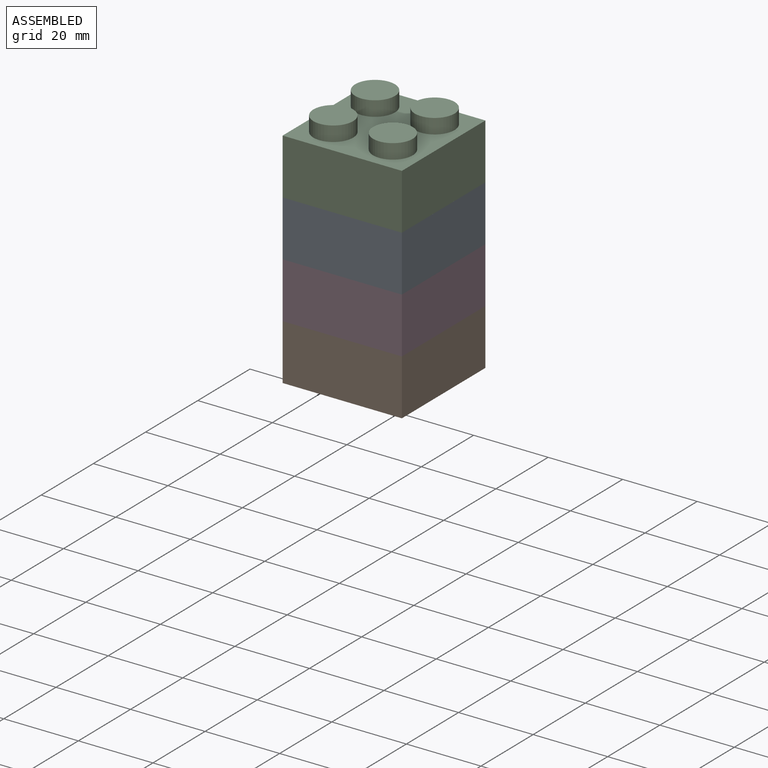
[diagram: assembled view]
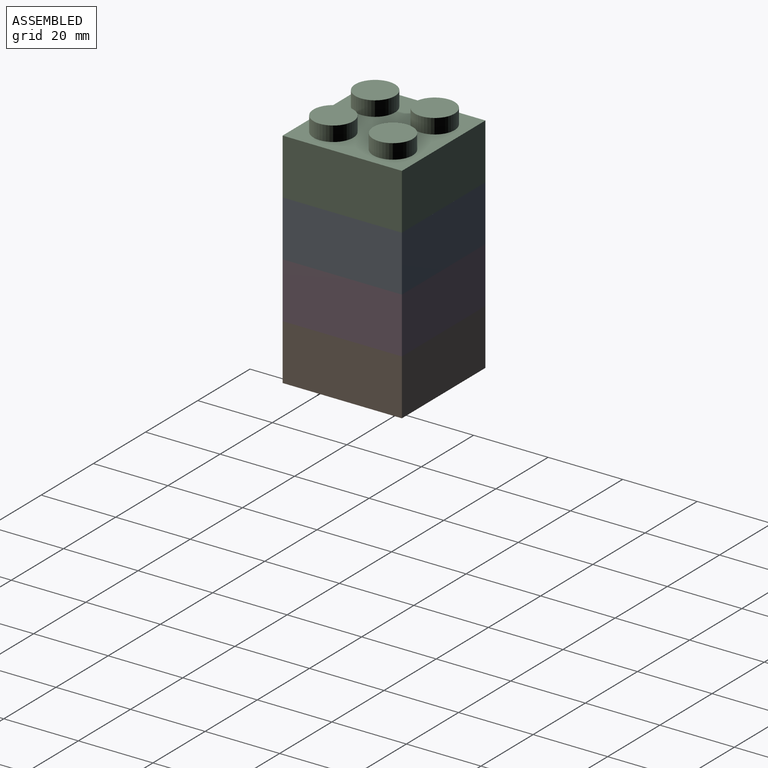
[diagram: assembled view, second angle]
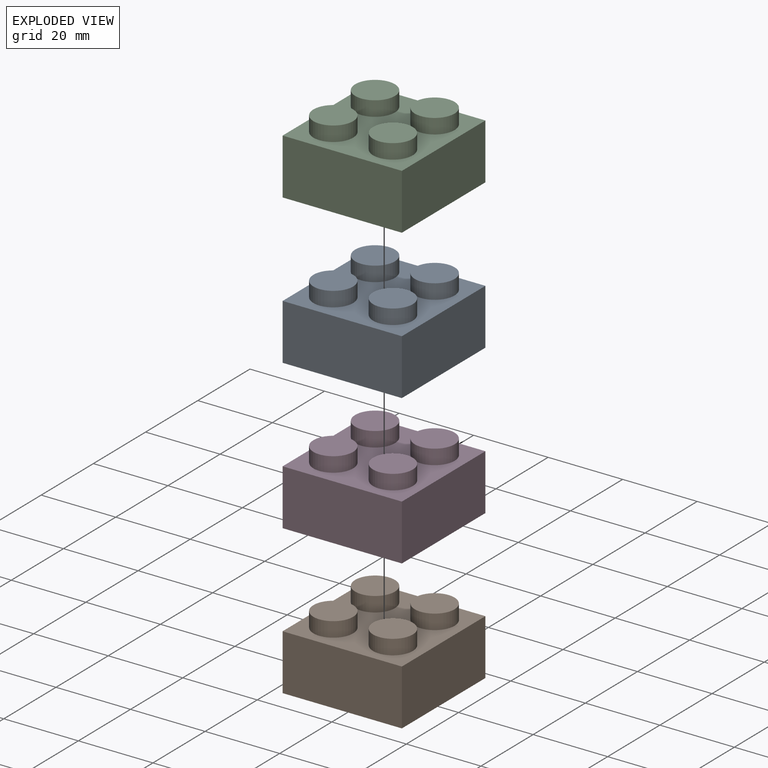
[diagram: exploded view]
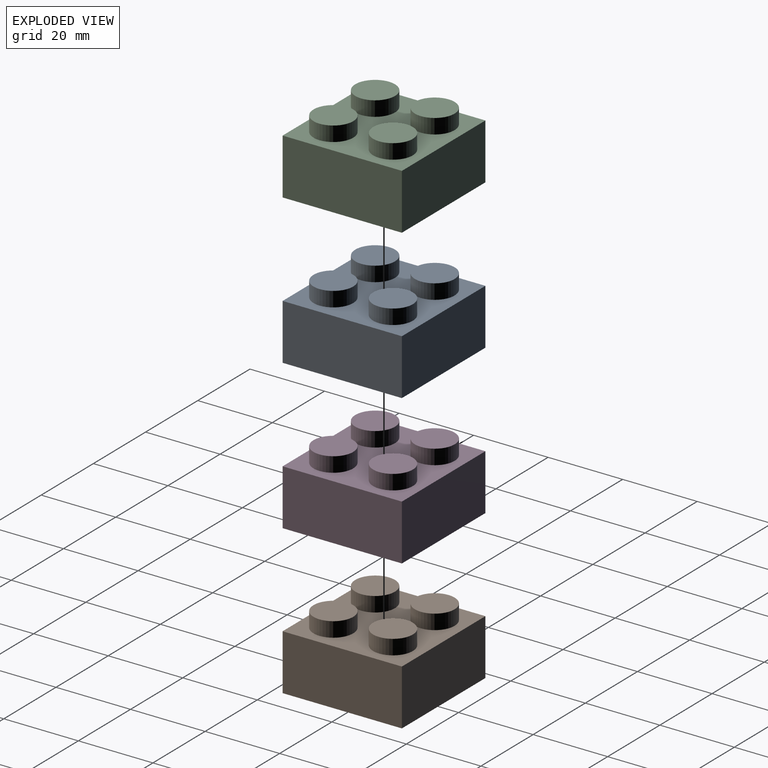
[diagram: exploded view, second angle]
ASSEMBLY  parts=4 mates=6
PART A: 27 faces, bbox 32x32x19 mm
  f0: plane 32x32mm, normal (0,0,-1), area 124mm2, adj f7,f8,f9,f10,f20,f21,f22,f23
  f1: cylinder r=5.33mm len=10.66mm, axis (0,0,-1), area 134mm2, adj f2,f11
  f2: plane 10.66x10.66mm, normal (0,0,1), area 89.2mm2, adj f1
  f3: cylinder r=5.33mm len=10.66mm, axis (0,0,-1), area 134mm2, adj f4,f11
  f4: plane 10.66x10.66mm, normal (0,0,1), area 89.2mm2, adj f3
  f5: cylinder r=5.33mm len=10.66mm, axis (0,0,-1), area 134mm2, adj f6,f11
  f6: plane 10.66x10.66mm, normal (0,0,1), area 89.2mm2, adj f5
  f7: plane 32x15mm, normal (0,1,0), area 480mm2, adj f0,f8,f10,f11
  f8: plane 32x15mm, normal (-1,0,0), area 480mm2, adj f0,f7,f9,f11
  f9: plane 32x15mm, normal (0,-1,0), area 480mm2, adj f0,f8,f10,f11
  f10: plane 32x15mm, normal (1,0,0), area 480mm2, adj f0,f7,f9,f11
  f11: plane 32x32mm, normal (0,0,1), area 667mm2, adj f1,f3,f5,f7,f8,f9,f10,f12
  f12: cylinder r=5.33mm len=10.66mm, axis (0,0,-1), area 134mm2, adj f11,f13
  f13: plane 10.66x10.66mm, normal (0,0,1), area 89.2mm2, adj f12
  f14: cylinder r=4.33mm len=8.66mm, axis (0,0,-1), area 108.8mm2, adj f15,f24
  f15: plane 8.66x8.66mm, normal (0,0,-1), area 58.9mm2, adj f14
  f16: cylinder r=4.33mm len=8.66mm, axis (0,0,-1), area 108.8mm2, adj f17,f24
  f17: plane 8.66x8.66mm, normal (0,0,-1), area 58.9mm2, adj f16
  f18: cylinder r=4.33mm len=8.66mm, axis (0,0,-1), area 108.8mm2, adj f19,f24
  f19: plane 8.66x8.66mm, normal (0,0,-1), area 58.9mm2, adj f18
  f20: plane 30x14mm, normal (0,-1,0), area 420mm2, adj f0,f21,f23,f24
  f21: plane 30x14mm, normal (1,0,0), area 420mm2, adj f0,f20,f22,f24
  f22: plane 30x14mm, normal (0,1,0), area 420mm2, adj f0,f21,f23,f24
  f23: plane 30x14mm, normal (-1,0,0), area 420mm2, adj f0,f20,f22,f24
  f24: plane 30x30mm, normal (0,0,-1), area 664.4mm2, adj f14,f16,f18,f20,f21,f22,f23,f25
  f25: cylinder r=4.33mm len=8.66mm, axis (0,0,-1), area 108.8mm2, adj f24,f26
  f26: plane 8.66x8.66mm, normal (0,0,-1), area 58.9mm2, adj f25
PART B: same geometry as A
PART C: same geometry as A
PART D: same geometry as A
PLACE A t=(0,0,16)mm
PLACE B t=(0,0,-14)mm
PLACE C t=(0,0,31)mm
PLACE D t=(0,0,1)mm
MATE planar A.f11 <-> C.f0  axis (0,0,1) through (0,0,31)mm
MATE slider D.f5 <-> B.f5  axis (0,0,1) through (7.99,8.01,20)mm
MATE planar B.f11 <-> D.f0  axis (0,0,1) through (0,0,1)mm
MATE slider C.f5 <-> A.f5  axis (0,0,1) through (7.99,8.01,50)mm
MATE planar D.f11 <-> A.f0  axis (0,0,1) through (0,0,16)mm
MATE slider A.f5 <-> D.f5  axis (0,0,1) through (7.99,8.01,35)mm
